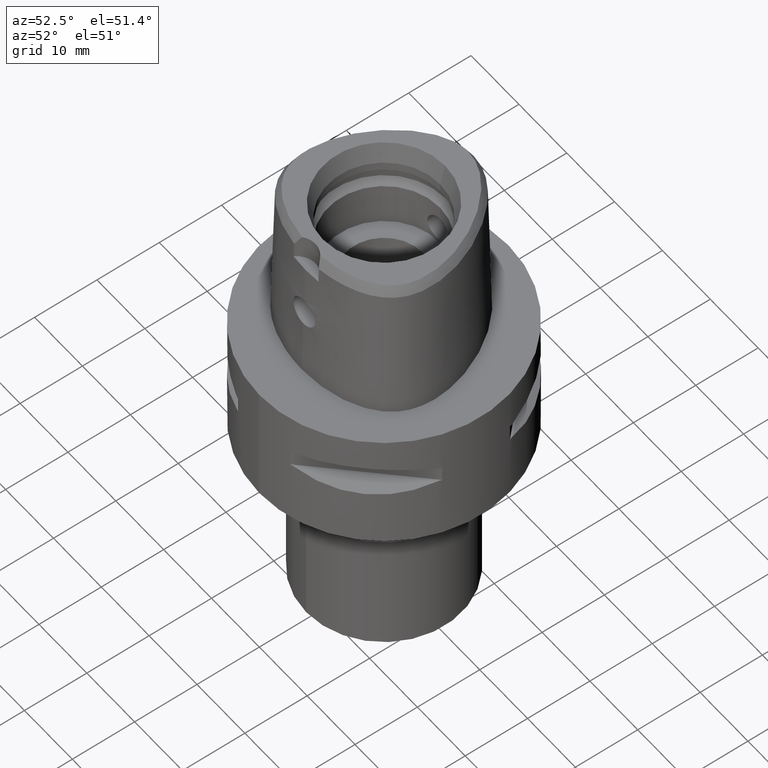
[diagram: clean part render]
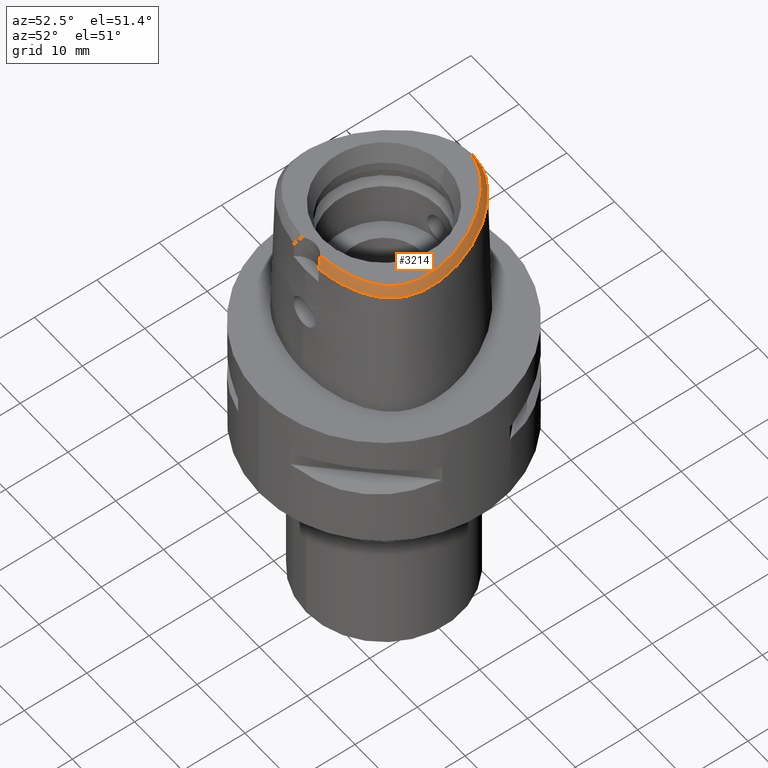
[diagram: same view with one face highlighted and labeled with its STEP entity id]
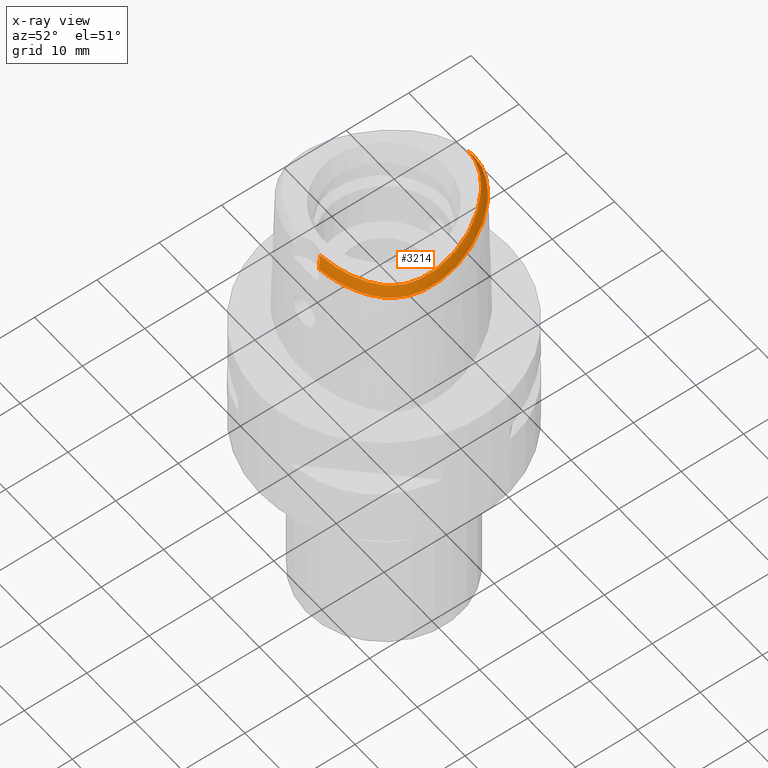
[diagram: x-ray of the same camera — body ghosted, the highlighted face saturated]
A machine part, auxiliary view. The second image highlights one B-rep face of the part: STEP entity #3214.
The next image is the same camera in x-ray: the body ghosted, the highlighted face saturated — about 0% of this face is hidden behind the body in this view.
In plain terms, the highlighted face is a freeform B-spline surface patch.
Its self-contained STEP definition (entity closure, byte-faithful):
#14 = CARTESIAN_POINT ( 'NONE',  ( 2.692731913842342006, 13.03725377846869904, 23.99999999999981526 ) ) ;
#17 = CARTESIAN_POINT ( 'NONE',  ( 3.015431326716000004, 13.85816439992000149, 22.42687534869999766 ) ) ;
#40 = CARTESIAN_POINT ( 'NONE',  ( 5.891480962838999247, 12.22124619392999989, 22.42687542307000115 ) ) ;
#59 = CARTESIAN_POINT ( 'NONE',  ( 2.673493704799999815, 12.98831396169000030, 24.09378418331000304 ) ) ;
#80 = CARTESIAN_POINT ( 'NONE',  ( 5.133540135919999692, 12.75294611568000036, 22.42688056499000027 ) ) ;
#104 = CARTESIAN_POINT ( 'NONE',  ( 1.670768320944000074, 13.95186216340000129, 22.98251232499999830 ) ) ;
#155 = CARTESIAN_POINT ( 'NONE',  ( 1.593696593278000062, -12.59540680304000126, 22.42687694749000116 ) ) ;
#167 = CARTESIAN_POINT ( 'NONE',  ( 1.515894610913332219, 14.29262276005880494, 22.52071729251869314 ) ) ;
#183 = CARTESIAN_POINT ( 'NONE',  ( 10.27622834778999916, -8.913357246251999655, 23.53814805225999507 ) ) ;
#190 = CARTESIAN_POINT ( 'NONE',  ( 10.46238780066888729, -9.543612998139410664, 22.52071729251869314 ) ) ;
#204 = CARTESIAN_POINT ( 'NONE',  ( 1.993786000716999851, -11.93952398566000106, 23.53814837208000199 ) ) ;
#216 = CARTESIAN_POINT ( 'NONE',  ( 6.021703607729323338, 12.22251596526479389, 22.52071729251869314 ) ) ;
#218 = DIRECTION ( 'NONE',  ( -4.178728135036778640E-11, -0.4887572544033736976, 0.8724198222576535766 ) ) ;
#229 = CARTESIAN_POINT ( 'NONE',  ( 11.14970917883999846, -8.067286454534000839, 23.53814814536999833 ) ) ;
#255 = CARTESIAN_POINT ( 'NONE',  ( 7.545665901495000050, -10.23272888488999932, 24.09378417050000465 ) ) ;
#279 = CARTESIAN_POINT ( 'NONE',  ( 13.00632124920000088, 0.2532658288736000518, 22.98251438409999992 ) ) ;
#299 = CARTESIAN_POINT ( 'NONE',  ( 2.377474434250266278, -12.13327925690595244, 23.12252361339864848 ) ) ;
#301 = CARTESIAN_POINT ( 'NONE',  ( 12.66713497291543256, -3.971396687642087642, 24.00000000000442313 ) ) ;
#303 = CARTESIAN_POINT ( 'NONE',  ( 12.97445618301000003, -5.335776195055999871, 22.98251202906000046 ) ) ;
#322 = CARTESIAN_POINT ( 'NONE',  ( 6.719766980793422384, -10.63148725728930444, 23.99999999999322498 ) ) ;
#325 = EDGE_CURVE ( 'NONE', #766, #797, #754, .T. ) ;
#326 = CARTESIAN_POINT ( 'NONE',  ( 12.65999260146000083, -1.707173089604000049, 24.09378415180000133 ) ) ;
#330 = B_SPLINE_SURFACE_WITH_KNOTS ( 'NONE', 3, 3, ( 
 ( #759, #2219, #3664, #155 ),
 ( #4514, #3762, #1229, #2367 ),
 ( #4584, #204, #1989, #1273 ),
 ( #2412, #1683, #2036, #3501 ),
 ( #2341, #2691, #1657, #4138 ),
 ( #4116, #2715, #1252, #3473 ),
 ( #3075, #4162, #3812, #943 ),
 ( #1329, #895, #3450, #4192 ),
 ( #255, #2320, #561, #919 ),
 ( #3857, #1611, #2766, #3429 ),
 ( #509, #1960, #4485, #2390 ),
 ( #609, #3784, #3401, #533 ),
 ( #3050, #183, #2013, #2063 ),
 ( #3023, #4218, #3096, #4557 ),
 ( #2667, #229, #872, #3124 ),
 ( #3835, #4536, #1299, #1635 ),
 ( #2739, #586, #965, #680 ),
 ( #3927, #2159, #1406, #3605 ),
 ( #4271, #3529, #3885, #4242 ),
 ( #4679, #2111, #2506, #1019 ),
 ( #2844, #2487, #303, #4295 ),
 ( #1427, #990, #3553, #2133 ),
 ( #705, #1758, #1058, #3579 ),
 ( #347, #3196, #4317, #4658 ),
 ( #1801, #1353, #3952, #1039 ),
 ( #326, #4607, #2864, #1710 ),
 ( #4699, #1782, #3240, #1448 ),
 ( #1379, #2888, #279, #661 ),
 ( #3218, #4340, #1084, #2531 ),
 ( #3974, #2786, #2438, #640 ),
 ( #725, #2183, #3147, #3625 ),
 ( #2470, #2094, #1735, #3170 ),
 ( #4631, #2818, #3909, #1562 ),
 ( #4039, #3674, #2227, #4438 ),
 ( #1821, #2978, #4014, #1128 ),
 ( #388, #1476, #4411, #3328 ),
 ( #2249, #453, #3355, #3691 ),
 ( #364, #2635, #4061, #1850 ),
 ( #2551, #744, #3259, #1107 ),
 ( #3993, #3286, #4083, #40 ),
 ( #2997, #1197, #3647, #80 ),
 ( #796, #410, #818, #1868 ),
 ( #2596, #1179, #3712, #3307 ),
 ( #59, #1515, #2272, #17 ),
 ( #2952, #2616, #1154, #2914 ),
 ( #4368, #1538, #104, #429 ),
 ( #1917, #2203, #1499, #4456 ),
 ( #771, #842, #2291, #2935 ),
 ( #4389, #2569, #1890, #2732 ),
 ( #3042, #1322, #866, #1268 ),
 ( #4478, #1936, #3067, #3423 ) ),
 .UNSPECIFIED., .F., .F., .F.,
 ( 4, 1, 1, 1, 1, 1, 1, 1, 1, 1, 1, 1, 1, 1, 1, 1, 1, 1, 1, 1, 1, 1, 1, 1, 1, 1, 1, 1, 1, 1, 1, 1, 1, 1, 1, 1, 1, 1, 1, 1, 1, 1, 1, 1, 1, 1, 1, 1, 4 ),
 ( 4, 4 ),
 ( -0.006801674744683999969, 0.0000000000000000000, 0.01005137981102000033, 0.03205023803730000509, 0.05404909626358000291, 0.07604795448985000872, 0.09804681271614999749, 0.1200456709425000018, 0.1420445291685999978, 0.1640433873949000143, 0.1860422456211999753, 0.2080411038474999919, 0.2300399620737999806, 0.2520388203000999972, 0.2740376785263000103, 0.2960365367525999991, 0.3180353949789000434, 0.3400342532052000322, 0.3620331114315000209, 0.3840319696576999786, 0.4060308278839999674, 0.4280296861103000117, 0.4500285443366000004, 0.4720274025628999892, 0.4940262607891000024, 0.5160251190154000467, 0.5380239772417000355, 0.5600228354680000242, 0.5820216936942999020, 0.6040205519204999707, 0.6260194101468000705, 0.6480182683730999482, 0.6700171265993999370, 0.6920159848256999258, 0.7140148430518999945, 0.7360137012781999832, 0.7580125595044999720, 0.7800114177307999608, 0.8020102759570999496, 0.8240091341833999383, 0.8460079924094999759, 0.8680068506357999647, 0.8900057088620999535, 0.9120045670883999422, 0.9340034253147000420, 0.9560022835408999997, 0.9780011417671999885, 1.000000000000000000, 1.016043917558999921 ),
 ( -0.04172918853439999687, 1.041765795049000021 ),
 .UNSPECIFIED. ) ;
#345 = CARTESIAN_POINT ( 'NONE',  ( 12.73107502714990602, -3.278999632795111641, 24.00000000000074962 ) ) ;
#347 = CARTESIAN_POINT ( 'NONE',  ( 12.67857478894000067, -3.276060612469999800, 24.09378408281000006 ) ) ;
#362 = CARTESIAN_POINT ( 'NONE',  ( -1.335434154347000060E-10, 13.57127880780999796, 24.00000000000000000 ) ) ;
#364 = CARTESIAN_POINT ( 'NONE',  ( 6.810831761742000445, 10.20462363893999935, 24.09378397353000167 ) ) ;
#373 = B_SPLINE_CURVE_WITH_KNOTS ( 'NONE', 3,
 ( #362, #723, #1375, #678, #701, #4293, #14, #2528, #4337, #1081, #1799, #741, #2181, #2549, #1819, #2466, #2201, #2109, #1446, #3991, #1473, #4696, #1780, #3602, #3257, #2911, #345, #301, #1732, #3645, #3623, #3550, #2813, #3167, #3971, #1755, #3192, #2485, #4629, #4654, #4267, #2504, #322, #1425, #4365, #2862, #3949, #3925, #2130 ),
 .UNSPECIFIED., .F., .F.,
 ( 4, 1, 1, 1, 1, 1, 1, 1, 1, 1, 1, 1, 1, 1, 1, 1, 1, 1, 1, 1, 1, 1, 1, 1, 1, 1, 1, 1, 1, 1, 1, 1, 1, 1, 1, 1, 1, 1, 1, 1, 1, 1, 1, 1, 1, 1, 4 ),
 ( 0.0000000000000000000, 0.02199885823280001151, 0.04399771645910000029, 0.06599657468529995796, 0.08799543291160005776, 0.1099942911379000465, 0.1319931493642000353, 0.1539920075905000241, 0.1759908658166000617, 0.1979897240429000504, 0.2199885822692000392, 0.2419874404955000280, 0.2639862987218000168, 0.2859851569481000055, 0.3079840151743000742, 0.3299828734006000630, 0.3519817316269000518, 0.3739805898531999295, 0.3959794480795000293, 0.4179783063057000980, 0.4399771645319999758, 0.4619760227582999645, 0.4839748809845999533, 0.5059737392109000531, 0.5279725974371000108, 0.5499714556633999996, 0.5719703138896999883, 0.5939691721160000881, 0.6159680303423000769, 0.6379668885684999236, 0.6599657467947999123, 0.6819646050210999011, 0.7039634632474000009, 0.7259623214736999897, 0.7479611796998999473, 0.7699600379262000471, 0.7919588961525000359, 0.8139577543788000247, 0.8359566126051000134, 0.8579554708314000022, 0.8799543290575000398, 0.9019531872838499886, 0.9239520455101499774, 0.9459509037364199902, 0.9679497619626999949, 0.9899486201889799997, 1.000000000000000000 ),
 .UNSPECIFIED. ) ;
#388 = CARTESIAN_POINT ( 'NONE',  ( 8.315912922282999276, 8.554042726408001229, 24.09378416230000042 ) ) ;
#410 = CARTESIAN_POINT ( 'NONE',  ( 4.093073040445999844, 12.65624132652000000, 23.53815001354000103 ) ) ;
#427 = CARTESIAN_POINT ( 'NONE',  ( -1.335434154347000060E-10, 13.57127880780999796, 24.00000000000000000 ) ) ;
#429 = CARTESIAN_POINT ( 'NONE',  ( 1.741461794077000080, 14.25530811013000054, 22.42687642801999814 ) ) ;
#453 = CARTESIAN_POINT ( 'NONE',  ( 7.797406022552999971, 9.634947789349000757, 23.53814840316999835 ) ) ;
#509 = CARTESIAN_POINT ( 'NONE',  ( 8.970091892352000329, -9.474162163879000786, 24.09378410517999924 ) ) ;
#533 = CARTESIAN_POINT ( 'NONE',  ( 10.10737644355000064, -9.834682788219000216, 22.42687685230999861 ) ) ;
#547 = CARTESIAN_POINT ( 'NONE',  ( 13.44334616192656107, -0.2854647381888676949, 22.52071729251869314 ) ) ;
#561 = CARTESIAN_POINT ( 'NONE',  ( 7.801623565488999823, -10.80072787787000088, 22.98251176591000089 ) ) ;
#570 = CARTESIAN_POINT ( 'NONE',  ( 12.06912915025817234, -7.841969071234928812, 22.52071729251869314 ) ) ;
#572 = LINE ( 'NONE', #3462, #1216 ) ;
#586 = CARTESIAN_POINT ( 'NONE',  ( 11.80602548611999936, -7.207168021027999139, 23.53814800486999914 ) ) ;
#609 = CARTESIAN_POINT ( 'NONE',  ( 9.560019243229000097, -9.077113215084999354, 24.09378409366999918 ) ) ;
#624 = CARTESIAN_POINT ( 'NONE',  ( 3.014424016408232099, -12.39773933397601091, 22.52071729251869314 ) ) ;
#640 = CARTESIAN_POINT ( 'NONE',  ( 12.71420453772000059, 2.496736137432999936, 22.42687605944999873 ) ) ;
#661 = CARTESIAN_POINT ( 'NONE',  ( 13.31122007378999861, 0.3169841313462999910, 22.42687961156000043 ) ) ;
#673 = CARTESIAN_POINT ( 'NONE',  ( 2.568703243657000090, -12.45023755174000080, 22.52071758139999957 ) ) ;
#678 = CARTESIAN_POINT ( 'NONE',  ( 1.005831379202609233, 13.49945263942994167, 23.99999999999650058 ) ) ;
#680 = CARTESIAN_POINT ( 'NONE',  ( 12.32882146587999905, -7.546361330260000777, 22.42687568849000002 ) ) ;
#701 = CARTESIAN_POINT ( 'NONE',  ( 1.541313514288517039, 13.39618800248322650, 23.99999999999488765 ) ) ;
#705 = CARTESIAN_POINT ( 'NONE',  ( 12.61496515693000120, -3.964805325242000134, 24.09378411981000312 ) ) ;
#723 = CARTESIAN_POINT ( 'NONE',  ( 0.1653041921268378622, 13.57127880781013474, 23.99999999999640821 ) ) ;
#725 = CARTESIAN_POINT ( 'NONE',  ( 11.42188503670000088, 3.289019883982000181, 24.09378414604000440 ) ) ;
#741 = CARTESIAN_POINT ( 'NONE',  ( 6.095079845025243692, 10.92785127077387664, 23.99999999999945999 ) ) ;
#744 = CARTESIAN_POINT ( 'NONE',  ( 6.263647496609999088, 11.12437452857000153, 23.53814830217999798 ) ) ;
#754 = B_SPLINE_CURVE_WITH_KNOTS ( 'NONE', 3,
 ( #1149, #2591, #167, #3438, #216, #2399, #4545, #1698, #547, #2377, #3460, #1284, #3823, #3485, #570, #1668, #190, #1643, #4618, #975, #624, #3844 ),
 .UNSPECIFIED., .F., .F.,
 ( 4, 1, 1, 1, 1, 1, 1, 1, 1, 1, 1, 1, 1, 1, 1, 1, 1, 1, 1, 4 ),
 ( 0.0000000000000000000, 0.04407253041122746740, 0.08814506081991639597, 0.1762901216375058477, 0.2644351824549895369, 0.3525802432724731705, 0.4407253040900626084, 0.5288703649075462421, 0.5729428953163409055, 0.6170154257250298757, 0.6610879561338246502, 0.6831242213382220374, 0.7051604865426193136, 0.7271967517470168119, 0.7492330169513081728, 0.7933055473601030583, 0.8373780777688977217, 0.8814506081775865809, 0.9695956689951972240, 1.000000000000000000 ),
 .UNSPECIFIED. ) ;
#759 = CARTESIAN_POINT ( 'NONE',  ( 1.526633041036000060, -11.66396334100999965, 24.09378408799999960 ) ) ;
#766 = VERTEX_POINT ( 'NONE', #1010 ) ;
#771 = CARTESIAN_POINT ( 'NONE',  ( 0.4871848319485999612, 13.50621688615999894, 24.09378415691000086 ) ) ;
#796 = CARTESIAN_POINT ( 'NONE',  ( 3.940056468462000083, 12.38488886232000041, 24.09378375517000137 ) ) ;
#797 = VERTEX_POINT ( 'NONE', #673 ) ;
#818 = CARTESIAN_POINT ( 'NONE',  ( 4.246089612430999694, 12.92759379072000137, 22.98251627189999979 ) ) ;
#842 = CARTESIAN_POINT ( 'NONE',  ( 0.5113539377535000208, 13.81687186785999977, 23.53814803506999809 ) ) ;
#866 = CARTESIAN_POINT ( 'NONE',  ( -0.2637504521366000332, 14.13764275734000009, 22.98251211461000310 ) ) ;
#872 = CARTESIAN_POINT ( 'NONE',  ( 11.38240858859999882, -8.274483114430999819, 22.98251215622000387 ) ) ;
#895 = CARTESIAN_POINT ( 'NONE',  ( 6.810793415823000352, -10.87387559445999941, 23.53814842191000167 ) ) ;
#919 = CARTESIAN_POINT ( 'NONE',  ( 7.929602397485999710, -11.08472737435999989, 22.42687556360999679 ) ) ;
#943 = CARTESIAN_POINT ( 'NONE',  ( 6.038112284671999674, -11.79567283266999844, 22.42688015526000100 ) ) ;
#965 = CARTESIAN_POINT ( 'NONE',  ( 12.06742347600000009, -7.376764675643999958, 22.98251184668000136 ) ) ;
#975 = CARTESIAN_POINT ( 'NONE',  ( 4.736458210706008032, -12.13940339171074356, 22.52071729251869314 ) ) ;
#990 = CARTESIAN_POINT ( 'NONE',  ( 12.81720722110999944, -4.654970701573001080, 23.53814805301999868 ) ) ;
#1010 = CARTESIAN_POINT ( 'NONE',  ( -6.268853442822000267E-11, 14.40001989798000182, 22.52071729252999788 ) ) ;
#1019 = CARTESIAN_POINT ( 'NONE',  ( 13.08576871268000197, -6.011938183908999811, 22.42687646910999888 ) ) ;
#1039 = CARTESIAN_POINT ( 'NONE',  ( 13.63049495509000053, -2.513200052280999852, 22.42687600645999879 ) ) ;
#1058 = CARTESIAN_POINT ( 'NONE',  ( 13.23313852829000048, -4.042908048815000654, 22.98251231589999932 ) ) ;
#1081 = CARTESIAN_POINT ( 'NONE',  ( 4.650015056714264183, 12.01535282295090745, 24.00000000000486011 ) ) ;
#1084 = CARTESIAN_POINT ( 'NONE',  ( 12.75443442390000115, 1.301317253536000029, 22.98251458160999761 ) ) ;
#1107 = CARTESIAN_POINT ( 'NONE',  ( 6.669241857177000909, 11.59723349251000002, 22.42687670118000298 ) ) ;
#1128 = CARTESIAN_POINT ( 'NONE',  ( 9.802832139749000362, 8.142426288442001336, 22.42687742514000249 ) ) ;
#1149 = CARTESIAN_POINT ( 'NONE',  ( -6.268853442822000267E-11, 14.40001989798000182, 22.52071729252999788 ) ) ;
#1154 = CARTESIAN_POINT ( 'NONE',  ( 2.273321029850999597, 13.78858171663999777, 22.98251170829000145 ) ) ;
#1179 = CARTESIAN_POINT ( 'NONE',  ( 3.424270910889999797, 13.00264072743999932, 23.53814921869999921 ) ) ;
#1197 = CARTESIAN_POINT ( 'NONE',  ( 4.791972701698000492, 12.23190210094000108, 23.53814943655000036 ) ) ;
#1216 = VECTOR ( 'NONE', #218, 1000.000000000000114 ) ;
#1229 = CARTESIAN_POINT ( 'NONE',  ( 1.701451368649999907, -12.27555487106999976, 22.98251267130000031 ) ) ;
#1252 = CARTESIAN_POINT ( 'NONE',  ( 4.884507877504999485, -11.78855247755999969, 22.98251383975999929 ) ) ;
#1268 = CARTESIAN_POINT ( 'NONE',  ( -0.2754363166865999579, 14.44876010666999910, 22.42687610272999876 ) ) ;
#1273 = CARTESIAN_POINT ( 'NONE',  ( 2.051492050450999916, -12.55946662463999886, 22.42687693925000048 ) ) ;
#1284 = CARTESIAN_POINT ( 'NONE',  ( 13.19588016803238872, -5.576003003767366906, 22.52071729251869314 ) ) ;
#1299 = CARTESIAN_POINT ( 'NONE',  ( 11.75001745258000163, -7.828095200955998756, 22.98251243752999784 ) ) ;
#1322 = CARTESIAN_POINT ( 'NONE',  ( -0.2520645875865999974, 13.82652540800999930, 23.53814812647999943 ) ) ;
#1329 = CARTESIAN_POINT ( 'NONE',  ( 6.701283054958000918, -10.58226762075000060, 24.09378407835999880 ) ) ;
#1353 = CARTESIAN_POINT ( 'NONE',  ( 13.00750309364000046, -2.520764839829000348, 23.53814809821999887 ) ) ;
#1375 = CARTESIAN_POINT ( 'NONE',  ( 0.4912642629215966394, 13.55865141013510744, 23.99999999999134914 ) ) ;
#1379 = CARTESIAN_POINT ( 'NONE',  ( 12.39652360003000098, 0.1258292239282000069, 24.09378392917999889 ) ) ;
#1406 = CARTESIAN_POINT ( 'NONE',  ( 12.33857356989000031, -6.920795659054999938, 22.98251214571000034 ) ) ;
#1425 = CARTESIAN_POINT ( 'NONE',  ( 5.780202704591065554, -10.95235643153747596, 23.99999999999960565 ) ) ;
#1427 = CARTESIAN_POINT ( 'NONE',  ( 12.51168919626999987, -4.593928447404000082, 24.09378415327000056 ) ) ;
#1446 = CARTESIAN_POINT ( 'NONE',  ( 10.97862720533614933, 4.421873472736585597, 23.99999999999845457 ) ) ;
#1448 = CARTESIAN_POINT ( 'NONE',  ( 13.48776312179999870, -0.6902156660390000864, 22.42687594871000201 ) ) ;
#1473 = CARTESIAN_POINT ( 'NONE',  ( 11.87933568351953006, 2.212772766010604908, 24.00000000000060041 ) ) ;
#1476 = CARTESIAN_POINT ( 'NONE',  ( 8.558208384520000322, 8.749758346628999206, 23.53814800855999678 ) ) ;
#1499 = CARTESIAN_POINT ( 'NONE',  ( 1.093276988006999906, 14.06328334337999841, 22.98251199964999714 ) ) ;
#1511 = EDGE_LOOP ( 'NONE', ( #4001, #1585, #4408, #1810 ) ) ;
#1515 = CARTESIAN_POINT ( 'NONE',  ( 2.787472912105999789, 13.27826410776999921, 23.53814790510999799 ) ) ;
#1538 = CARTESIAN_POINT ( 'NONE',  ( 1.600074847811999934, 13.64841621667000027, 23.53814822198000201 ) ) ;
#1548 = EDGE_CURVE ( 'NONE', #2945, #3132, #373, .T. ) ;
#1562 = CARTESIAN_POINT ( 'NONE',  ( 11.18249811319000031, 5.953280957637999471, 22.42687600236999756 ) ) ;
#1585 = ORIENTED_EDGE ( 'NONE', *, *, #1832, .T. ) ;
#1611 = CARTESIAN_POINT ( 'NONE',  ( 8.446934837638000459, -10.13610419804999907, 23.53814810879999797 ) ) ;
#1635 = CARTESIAN_POINT ( 'NONE',  ( 11.99768301812999916, -8.017162017181000522, 22.42687660200000010 ) ) ;
#1643 = CARTESIAN_POINT ( 'NONE',  ( 9.075996545096728596, -10.47368666716278263, 22.52071729251869314 ) ) ;
#1657 = CARTESIAN_POINT ( 'NONE',  ( 3.743545769682000035, -12.02745773972000087, 22.98251157848999782 ) ) ;
#1668 = CARTESIAN_POINT ( 'NONE',  ( 11.42690036410719046, -8.639965949823052327, 22.52071729251869314 ) ) ;
#1683 = CARTESIAN_POINT ( 'NONE',  ( 2.715017554396000232, -11.86470260839000090, 23.53814825879000239 ) ) ;
#1698 = CARTESIAN_POINT ( 'NONE',  ( 12.68166859856818185, 2.767886240359058281, 22.52071729251869314 ) ) ;
#1710 = CARTESIAN_POINT ( 'NONE',  ( 13.59164325047000155, -1.633981155408000152, 22.42687587733999877 ) ) ;
#1732 = CARTESIAN_POINT ( 'NONE',  ( 12.56325666868020008, -4.604231586668391607, 23.99999999999554845 ) ) ;
#1735 = CARTESIAN_POINT ( 'NONE',  ( 11.49321727082000066, 4.667837948559999894, 22.98251282474999968 ) ) ;
#1755 = CARTESIAN_POINT ( 'NONE',  ( 10.95628640552842015, -7.895061898324033045, 23.99999999999779021 ) ) ;
#1758 = CARTESIAN_POINT ( 'NONE',  ( 12.92405184261000173, -4.003856687027999683, 23.53814821785000078 ) ) ;
#1778 = CARTESIAN_POINT ( 'NONE',  ( 2.145199990327296913, -11.88057979214423909, 23.61561775293197840 ) ) ;
#1780 = CARTESIAN_POINT ( 'NONE',  ( 12.44798655948427601, 0.1365840453712249547, 24.00000000000574474 ) ) ;
#1782 = CARTESIAN_POINT ( 'NONE',  ( 12.87113396896999973, -0.7790287015631999212, 23.53814808126999836 ) ) ;
#1799 = CARTESIAN_POINT ( 'NONE',  ( 5.360995407852130690, 11.51670950506821889, 24.00000000000234479 ) ) ;
#1801 = CARTESIAN_POINT ( 'NONE',  ( 12.69600716290999998, -2.524547233603000151, 24.09378414410000246 ) ) ;
#1810 = ORIENTED_EDGE ( 'NONE', *, *, #4532, .F. ) ;
#1819 = CARTESIAN_POINT ( 'NONE',  ( 8.356809247697979615, 8.587076979792101383, 23.99999999999722888 ) ) ;
#1821 = CARTESIAN_POINT ( 'NONE',  ( 9.042700090394999890, 7.599031703516000213, 24.09378405952000080 ) ) ;
#1832 = EDGE_CURVE ( 'NONE', #766, #2945, #572, .T. ) ;
#1850 = CARTESIAN_POINT ( 'NONE',  ( 7.461966788256000349, 10.87484652724999989, 22.42687886739999925 ) ) ;
#1868 = CARTESIAN_POINT ( 'NONE',  ( 4.399106184414999454, 13.19894625493000007, 22.42688253026999590 ) ) ;
#1890 = CARTESIAN_POINT ( 'NONE',  ( 0.05036297626083000717, 14.14633292477999937, 22.98251228760999965 ) ) ;
#1917 = CARTESIAN_POINT ( 'NONE',  ( 0.9977713214932000252, 13.44748310003000036, 24.09378414895000020 ) ) ;
#1936 = CARTESIAN_POINT ( 'NONE',  ( -0.3824330111029000112, 13.81967986369999934, 23.53814802148999874 ) ) ;
#1960 = CARTESIAN_POINT ( 'NONE',  ( 9.134652579770001779, -9.738678659424000017, 23.53814828983000140 ) ) ;
#1989 = CARTESIAN_POINT ( 'NONE',  ( 2.022639025583999661, -12.24949530514999907, 22.98251265566999990 ) ) ;
#2013 = CARTESIAN_POINT ( 'NONE',  ( 10.47613109842000156, -9.152321239710000000, 22.98251195109999756 ) ) ;
#2036 = CARTESIAN_POINT ( 'NONE',  ( 2.754556310214999915, -12.17356617380000117, 22.98251240608999879 ) ) ;
#2063 = CARTESIAN_POINT ( 'NONE',  ( 10.67603384905000041, -9.391285233168998658, 22.42687584994000005 ) ) ;
#2094 = CARTESIAN_POINT ( 'NONE',  ( 11.21220677836999968, 4.533520162204000670, 23.53814844883000035 ) ) ;
#2109 = CARTESIAN_POINT ( 'NONE',  ( 10.41037096115088367, 5.527356888184570494, 23.99999999999944933 ) ) ;
#2111 = CARTESIAN_POINT ( 'NONE',  ( 12.49930846205000101, -5.801248746420999858, 23.53814823404999856 ) ) ;
#2130 = CARTESIAN_POINT ( 'NONE',  ( 1.908900751366000126, -11.68567549349000068, 24.00000000000000000 ) ) ;
#2133 = CARTESIAN_POINT ( 'NONE',  ( 13.42824327080999858, -4.777055209909999434, 22.42687585250999760 ) ) ;
#2159 = CARTESIAN_POINT ( 'NONE',  ( 12.06476757613999951, -6.772055436505999282, 23.53814814059999705 ) ) ;
#2181 = CARTESIAN_POINT ( 'NONE',  ( 6.847466138750907483, 10.24233194362317079, 23.99999999999336353 ) ) ;
#2183 = CARTESIAN_POINT ( 'NONE',  ( 11.71028425228000103, 3.406648900945000058, 23.53814808863999986 ) ) ;
#2201 = CARTESIAN_POINT ( 'NONE',  ( 9.775510958009071771, 6.602848413448474396, 24.00000000000125056 ) ) ;
#2203 = CARTESIAN_POINT ( 'NONE',  ( 1.045524154750000045, 13.75538322170000072, 23.53814807429999689 ) ) ;
#2219 = CARTESIAN_POINT ( 'NONE',  ( 1.548987558450000135, -11.97444449502000019, 23.53814837450000041 ) ) ;
#2227 = CARTESIAN_POINT ( 'NONE',  ( 10.25803313200000133, 6.906941963447000177, 22.98251247436999734 ) ) ;
#2249 = CARTESIAN_POINT ( 'NONE',  ( 7.567218942518000091, 9.425116508218000178, 24.09378408217000000 ) ) ;
#2272 = CARTESIAN_POINT ( 'NONE',  ( 2.901452119411000119, 13.56821425383999902, 22.98251162690000271 ) ) ;
#2291 = CARTESIAN_POINT ( 'NONE',  ( 0.5355230435584000803, 14.12752684956999971, 22.98251191322000153 ) ) ;
#2320 = CARTESIAN_POINT ( 'NONE',  ( 7.673644733491999936, -10.51672838138000010, 23.53814796820000055 ) ) ;
#2341 = CARTESIAN_POINT ( 'NONE',  ( 3.634657013416000115, -11.41411120457000017, 24.09378418777999897 ) ) ;
#2367 = CARTESIAN_POINT ( 'NONE',  ( 1.725674035281999918, -12.58590153276000123, 22.42687696341999981 ) ) ;
#2377 = CARTESIAN_POINT ( 'NONE',  ( 13.60847656765939107, -2.623199557614614541, 22.52071729251869314 ) ) ;
#2390 = CARTESIAN_POINT ( 'NONE',  ( 9.463773954605999350, -10.26771165050999990, 22.42687665912999861 ) ) ;
#2399 = CARTESIAN_POINT ( 'NONE',  ( 8.737913805847986382, 9.598635895951684205, 22.52071729251869314 ) ) ;
#2412 = CARTESIAN_POINT ( 'NONE',  ( 2.675478798576000461, -11.55583904298000064, 24.09378411149000243 ) ) ;
#2438 = CARTESIAN_POINT ( 'NONE',  ( 12.41932426707000126, 2.396438712996000309, 22.98251208661000078 ) ) ;
#2466 = CARTESIAN_POINT ( 'NONE',  ( 9.085466894419825579, 7.629604351704328380, 23.99999999999989342 ) ) ;
#2470 = CARTESIAN_POINT ( 'NONE',  ( 10.93119628592000048, 4.399202375848999758, 24.09378407290000013 ) ) ;
#2485 = CARTESIAN_POINT ( 'NONE',  ( 10.11006658375411149, -8.714727269571270085, 24.00000000000036238 ) ) ;
#2487 = CARTESIAN_POINT ( 'NONE',  ( 12.67420108780000021, -5.252580402252999825, 23.53814808764999711 ) ) ;
#2504 = CARTESIAN_POINT ( 'NONE',  ( 7.567267065261161108, -10.28066430934622488, 24.00000000000093081 ) ) ;
#2506 = CARTESIAN_POINT ( 'NONE',  ( 12.79253858737000016, -5.906593465164999834, 22.98251235158000227 ) ) ;
#2528 = CARTESIAN_POINT ( 'NONE',  ( 3.312825528086755789, 12.76889704495747679, 23.99999999999906919 ) ) ;
#2531 = CARTESIAN_POINT ( 'NONE',  ( 13.05482973001000069, 1.383661904488000083, 22.42687991692999816 ) ) ;
#2549 = CARTESIAN_POINT ( 'NONE',  ( 7.606071530364771682, 9.460533301731803846, 23.99999999999716849 ) ) ;
#2551 = CARTESIAN_POINT ( 'NONE',  ( 6.060850316326999554, 10.88794504659999873, 24.09378410268000081 ) ) ;
#2569 = CARTESIAN_POINT ( 'NONE',  ( 0.04822164311787999896, 13.83481837411000015, 23.53814820500999971 ) ) ;
#2591 = CARTESIAN_POINT ( 'NONE',  ( 0.5039711947966580841, 14.40001989753295852, 22.52071729251869314 ) ) ;
#2596 = CARTESIAN_POINT ( 'NONE',  ( 3.290195308747000169, 12.72143280130000065, 24.09378391656999696 ) ) ;
#2616 = CARTESIAN_POINT ( 'NONE',  ( 2.180511934989000089, 13.49116575141000141, 23.53814794204999927 ) ) ;
#2635 = CARTESIAN_POINT ( 'NONE',  ( 7.027876770579999821, 10.42803126836999894, 23.53814893815999909 ) ) ;
#2667 = CARTESIAN_POINT ( 'NONE',  ( 10.91700976907000076, -7.860089794638000171, 24.09378413452000345 ) ) ;
#2691 = CARTESIAN_POINT ( 'NONE',  ( 3.689101391548999853, -11.72078447214000008, 23.53814788312999795 ) ) ;
#2715 = CARTESIAN_POINT ( 'NONE',  ( 4.811769336672999664, -11.48568992796000110, 23.53814890956000028 ) ) ;
#2732 = CARTESIAN_POINT ( 'NONE',  ( 0.05250430940378000844, 14.45784747543999949, 22.42687637019999869 ) ) ;
#2739 = CARTESIAN_POINT ( 'NONE',  ( 11.54462749625000129, -7.037571366413000185, 24.09378416304999959 ) ) ;
#2766 = CARTESIAN_POINT ( 'NONE',  ( 8.593275019052001085, -10.41110600082999937, 22.98251207564999987 ) ) ;
#2786 = CARTESIAN_POINT ( 'NONE',  ( 12.12444399643000104, 2.296141288558999793, 23.53814811376999927 ) ) ;
#2813 = CARTESIAN_POINT ( 'NONE',  ( 11.83717647605589107, -6.648420630655690111, 23.99999999999895195 ) ) ;
#2818 = CARTESIAN_POINT ( 'NONE',  ( 10.63705900040000074, 5.652403510255999741, 23.53814809701999877 ) ) ;
#2844 = CARTESIAN_POINT ( 'NONE',  ( 12.37394599258999861, -5.169384609449999779, 24.09378414625000175 ) ) ;
#2862 = CARTESIAN_POINT ( 'NONE',  ( 3.643846516944406755, -11.46587366694073751, 24.00000000000558131 ) ) ;
#2864 = CARTESIAN_POINT ( 'NONE',  ( 13.28109303413000042, -1.658378466805999985, 22.98251196881999547 ) ) ;
#2888 = CARTESIAN_POINT ( 'NONE',  ( 12.70142242462000048, 0.1895475264009000016, 23.53814915663999940 ) ) ;
#2911 = CARTESIAN_POINT ( 'NONE',  ( 12.74858362815182922, -2.523908814685861035, 24.00000000000250466 ) ) ;
#2914 = CARTESIAN_POINT ( 'NONE',  ( 2.366130124711999905, 14.08599768186000034, 22.42687547453000008 ) ) ;
#2926 = FACE_OUTER_BOUND ( 'NONE', #1511, .T. ) ;
#2935 = CARTESIAN_POINT ( 'NONE',  ( 0.5596921493633000289, 14.43818183127000054, 22.42687579138000231 ) ) ;
#2945 = VERTEX_POINT ( 'NONE', #427 ) ;
#2952 = CARTESIAN_POINT ( 'NONE',  ( 2.087702840128000226, 13.19374978618999883, 24.09378417581000065 ) ) ;
#2978 = CARTESIAN_POINT ( 'NONE',  ( 9.296077440179999485, 7.780163231823999936, 23.53814851473000047 ) ) ;
#2997 = CARTESIAN_POINT ( 'NONE',  ( 4.621188984586999560, 11.97138009357000143, 24.09378387233999774 ) ) ;
#3023 = CARTESIAN_POINT ( 'NONE',  ( 10.52639857890000030, -8.268252600066999136, 24.09378414631000354 ) ) ;
#3042 = CARTESIAN_POINT ( 'NONE',  ( -0.2403787230366000172, 13.51540805868000028, 24.09378413836000021 ) ) ;
#3050 = CARTESIAN_POINT ( 'NONE',  ( 10.07632559717000120, -8.674393252793999309, 24.09378415343000057 ) ) ;
#3067 = CARTESIAN_POINT ( 'NONE',  ( -0.3998697132335999882, 14.13045704021999960, 22.98251188329000172 ) ) ;
#3075 = CARTESIAN_POINT ( 'NONE',  ( 5.764827038514000357, -10.90208086062999904, 24.09378389676000154 ) ) ;
#3096 = CARTESIAN_POINT ( 'NONE',  ( 10.95982480154000172, -8.715947074644999404, 22.98251202830000040 ) ) ;
#3124 = CARTESIAN_POINT ( 'NONE',  ( 11.61510799836999830, -8.481679774328000576, 22.42687616706999876 ) ) ;
#3132 = VERTEX_POINT ( 'NONE', #4672 ) ;
#3147 = CARTESIAN_POINT ( 'NONE',  ( 11.99868346786000117, 3.524277917908000379, 22.98251203123999886 ) ) ;
#3167 = CARTESIAN_POINT ( 'NONE',  ( 11.58874808009367996, -7.066197077816735117, 23.99999999999763034 ) ) ;
#3170 = CARTESIAN_POINT ( 'NONE',  ( 11.77422776328000076, 4.802155734914999918, 22.42687720068000345 ) ) ;
#3192 = CARTESIAN_POINT ( 'NONE',  ( 10.56297693592085274, -8.306035104844008643, 23.99999999999792522 ) ) ;
#3196 = CARTESIAN_POINT ( 'NONE',  ( 12.98961910296000077, -3.293473210813999685, 23.53814840004000075 ) ) ;
#3214 = ADVANCED_FACE ( 'NONE', ( #2926 ), #330, .F. ) ;
#3218 = CARTESIAN_POINT ( 'NONE',  ( 12.15364381168000030, 1.136627951632000144, 24.09378391096999650 ) ) ;
#3240 = CARTESIAN_POINT ( 'NONE',  ( 13.17944854538999877, -0.7346221838011000038, 22.98251201499000018 ) ) ;
#3257 = CARTESIAN_POINT ( 'NONE',  ( 12.71240944240228288, -1.703055140481006369, 24.00000000000412470 ) ) ;
#3259 = CARTESIAN_POINT ( 'NONE',  ( 6.466444676893000398, 11.36080401053999900, 22.98251250167999871 ) ) ;
#3286 = CARTESIAN_POINT ( 'NONE',  ( 5.516740132008999709, 11.72355372774999971, 23.53814792693999891 ) ) ;
#3307 = CARTESIAN_POINT ( 'NONE',  ( 3.692422115175999497, 13.56505657974000023, 22.42687982297000104 ) ) ;
#3328 = CARTESIAN_POINT ( 'NONE',  ( 9.042799308991998686, 9.141189587071998801, 22.42687570109000106 ) ) ;
#3355 = CARTESIAN_POINT ( 'NONE',  ( 8.027593102587998075, 9.844779070481001426, 22.98251272417999758 ) ) ;
#3401 = CARTESIAN_POINT ( 'NONE',  ( 9.924924043445999544, -9.582159597173999899, 22.98251259942999880 ) ) ;
#3423 = CARTESIAN_POINT ( 'NONE',  ( -0.4173064153643000207, 14.44123421675000074, 22.42687574509000115 ) ) ;
#3429 = CARTESIAN_POINT ( 'NONE',  ( 8.739615200467000022, -10.68610780362000057, 22.42687604249999822 ) ) ;
#3438 = CARTESIAN_POINT ( 'NONE',  ( 3.539803247036101386, 13.67924950644984428, 22.52071729251869314 ) ) ;
#3450 = CARTESIAN_POINT ( 'NONE',  ( 6.920303776687999786, -11.16548356816000087, 22.98251276545999744 ) ) ;
#3460 = CARTESIAN_POINT ( 'NONE',  ( 13.49620531829855707, -4.288887307216343814, 22.52071729251869314 ) ) ;
#3462 = CARTESIAN_POINT ( 'NONE',  ( -6.268853442822000267E-11, 14.40001989798000182, 22.52071729252999788 ) ) ;
#3473 = CARTESIAN_POINT ( 'NONE',  ( 4.957246418336000993, -12.09141502716000005, 22.42687876996999918 ) ) ;
#3485 = CARTESIAN_POINT ( 'NONE',  ( 12.48241502960077653, -7.206725676734023978, 22.52071729251869314 ) ) ;
#3501 = CARTESIAN_POINT ( 'NONE',  ( 2.794095066034000041, -12.48242973921999877, 22.42687655339000230 ) ) ;
#3529 = CARTESIAN_POINT ( 'NONE',  ( 12.29507478630999984, -6.307093648112999773, 23.53814814048000059 ) ) ;
#3550 = CARTESIAN_POINT ( 'NONE',  ( 12.05866527356799978, -6.201315129638921064, 23.99999999999522871 ) ) ;
#3553 = CARTESIAN_POINT ( 'NONE',  ( 13.12272524595999990, -4.716012955740999324, 22.98251195277000036 ) ) ;
#3579 = CARTESIAN_POINT ( 'NONE',  ( 13.54222521396999923, -4.081959410601999849, 22.42687641395000142 ) ) ;
#3602 = CARTESIAN_POINT ( 'NONE',  ( 12.61485888653424858, -0.8159399761862055067, 24.00000000000083844 ) ) ;
#3605 = CARTESIAN_POINT ( 'NONE',  ( 12.61237956363000023, -7.069535881604999794, 22.42687615082000008 ) ) ;
#3623 = CARTESIAN_POINT ( 'NONE',  ( 12.25557177138983000, -5.713684847254590693, 24.00000000000398614 ) ) ;
#3625 = CARTESIAN_POINT ( 'NONE',  ( 12.28708268343999954, 3.641906934870999812, 22.42687597384000142 ) ) ;
#3645 = CARTESIAN_POINT ( 'NONE',  ( 12.42462515086991992, -5.183426978152312792, 24.00000000000562395 ) ) ;
#3647 = CARTESIAN_POINT ( 'NONE',  ( 4.962756418809000536, 12.49242410831000072, 22.98251500076999676 ) ) ;
#3664 = CARTESIAN_POINT ( 'NONE',  ( 1.571342075863999987, -12.28492564903000073, 22.98251266099000389 ) ) ;
#3674 = CARTESIAN_POINT ( 'NONE',  ( 9.994534470002999882, 6.740880696492999924, 23.53814828978000051 ) ) ;
#3691 = CARTESIAN_POINT ( 'NONE',  ( 8.257780182623001508, 10.05461035161000005, 22.42687704519000391 ) ) ;
#3712 = CARTESIAN_POINT ( 'NONE',  ( 3.558346513033000313, 13.28384865358999889, 22.98251452083000146 ) ) ;
#3762 = CARTESIAN_POINT ( 'NONE',  ( 1.677228702017000028, -11.96520820938000007, 23.53814837916999991 ) ) ;
#3784 = CARTESIAN_POINT ( 'NONE',  ( 9.742471643337001552, -9.329636406129999671, 23.53814834654999899 ) ) ;
#3812 = CARTESIAN_POINT ( 'NONE',  ( 5.947017202619999665, -11.49780884199000042, 22.98251473575999881 ) ) ;
#3823 = CARTESIAN_POINT ( 'NONE',  ( 12.82590900890492946, -6.531187914406431538, 22.52071729251869314 ) ) ;
#3835 = CARTESIAN_POINT ( 'NONE',  ( 11.25468632148000125, -7.449961568506999754, 24.09378410859000041 ) ) ;
#3844 = CARTESIAN_POINT ( 'NONE',  ( 2.568703243657000090, -12.45023755174000080, 22.52071758139999957 ) ) ;
#3857 = CARTESIAN_POINT ( 'NONE',  ( 8.300594656223999834, -9.861102395258999564, 24.09378414194999962 ) ) ;
#3885 = CARTESIAN_POINT ( 'NONE',  ( 12.57948986905999789, -6.434351666359999555, 22.98251214544000121 ) ) ;
#3909 = CARTESIAN_POINT ( 'NONE',  ( 10.90977855679000186, 5.802842233946999606, 22.98251204970000217 ) ) ;
#3925 = CARTESIAN_POINT ( 'NONE',  ( 2.094511630441635575, -11.66893426578018911, 24.00000000000206057 ) ) ;
#3927 = CARTESIAN_POINT ( 'NONE',  ( 11.79096158240000136, -6.623315213957000402, 24.09378413549000086 ) ) ;
#3939 = B_SPLINE_CURVE_WITH_KNOTS ( 'NONE', 3,
 ( #3946, #299, #1778, #4602 ),
 .UNSPECIFIED., .F., .F.,
 ( 4, 4 ),
 ( 0.0000000000000000000, 1.000000000000000000 ),
 .UNSPECIFIED. ) ;
#3946 = CARTESIAN_POINT ( 'NONE',  ( 2.568703243657000090, -12.45023755174000080, 22.52071758139999957 ) ) ;
#3949 = CARTESIAN_POINT ( 'NONE',  ( 2.682152426755722630, -11.60797119916323439, 23.99999999999877787 ) ) ;
#3952 = CARTESIAN_POINT ( 'NONE',  ( 13.31899902436000005, -2.516982446054999656, 22.98251205233999883 ) ) ;
#3971 = CARTESIAN_POINT ( 'NONE',  ( 11.29648905055014829, -7.481873590177103850, 23.99999999999684874 ) ) ;
#3974 = CARTESIAN_POINT ( 'NONE',  ( 11.82956372577999993, 2.195843864122999811, 24.09378414094000220 ) ) ;
#3991 = CARTESIAN_POINT ( 'NONE',  ( 11.47056307656461271, 3.308874133465462108, 23.99999999999808153 ) ) ;
#3993 = CARTESIAN_POINT ( 'NONE',  ( 5.329369716593999939, 11.47470749465999873, 24.09378417888000001 ) ) ;
#4001 = ORIENTED_EDGE ( 'NONE', *, *, #325, .F. ) ;
#4014 = CARTESIAN_POINT ( 'NONE',  ( 9.549454789964999080, 7.961294760132998860, 22.98251296992999926 ) ) ;
#4039 = CARTESIAN_POINT ( 'NONE',  ( 9.731035808008998700, 6.574819429539999760, 24.09378410520000102 ) ) ;
#4061 = CARTESIAN_POINT ( 'NONE',  ( 7.244921779418000085, 10.65143889780999942, 22.98251390277999917 ) ) ;
#4083 = CARTESIAN_POINT ( 'NONE',  ( 5.704110547423999478, 11.97239996083999891, 22.98251167501000225 ) ) ;
#4116 = CARTESIAN_POINT ( 'NONE',  ( 4.739030795841999932, -11.18282737836000074, 24.09378397934999683 ) ) ;
#4138 = CARTESIAN_POINT ( 'NONE',  ( 3.797990147816000306, -12.33413100729000078, 22.42687527385000124 ) ) ;
#4162 = CARTESIAN_POINT ( 'NONE',  ( 5.855922120566999567, -11.19994485131000239, 23.53814931626000018 ) ) ;
#4192 = CARTESIAN_POINT ( 'NONE',  ( 7.029814137554000197, -11.45709154187000145, 22.42687710901000031 ) ) ;
#4218 = CARTESIAN_POINT ( 'NONE',  ( 10.74311169021999923, -8.492099837355999270, 23.53814808730999886 ) ) ;
#4242 = CARTESIAN_POINT ( 'NONE',  ( 12.86390495182000038, -6.561609684606000137, 22.42687615039999827 ) ) ;
#4267 = CARTESIAN_POINT ( 'NONE',  ( 8.325294977167454036, -9.907519125943057503, 24.00000000000115818 ) ) ;
#4271 = CARTESIAN_POINT ( 'NONE',  ( 12.01065970355000090, -6.179835629866999192, 24.09378413551000264 ) ) ;
#4293 = CARTESIAN_POINT ( 'NONE',  ( 2.103367809293602786, 13.24394973622197824, 24.00000000000080291 ) ) ;
#4295 = CARTESIAN_POINT ( 'NONE',  ( 13.27471127821999808, -5.418971987860000006, 22.42687597045999937 ) ) ;
#4317 = CARTESIAN_POINT ( 'NONE',  ( 13.30066341696999999, -3.310885809157999571, 22.98251271727000145 ) ) ;
#4337 = CARTESIAN_POINT ( 'NONE',  ( 3.965883677374500316, 12.43068963207287325, 23.99999999999986500 ) ) ;
#4340 = CARTESIAN_POINT ( 'NONE',  ( 12.45403911778999984, 1.218972602583999976, 23.53814924629000060 ) ) ;
#4365 = CARTESIAN_POINT ( 'NONE',  ( 4.751308116302622508, -11.23394664105729035, 24.00000000000371614 ) ) ;
#4368 = CARTESIAN_POINT ( 'NONE',  ( 1.529381374680000016, 13.34497026993000013, 24.09378411896000216 ) ) ;
#4389 = CARTESIAN_POINT ( 'NONE',  ( 0.04608030997492999770, 13.52330382345000181, 24.09378412241000333 ) ) ;
#4408 = ORIENTED_EDGE ( 'NONE', *, *, #1548, .T. ) ;
#4411 = CARTESIAN_POINT ( 'NONE',  ( 8.800503846755999504, 8.945473966850000735, 22.98251185483000114 ) ) ;
#4438 = CARTESIAN_POINT ( 'NONE',  ( 10.52153179398999860, 7.073003230401000430, 22.42687665895000038 ) ) ;
#4456 = CARTESIAN_POINT ( 'NONE',  ( 1.141029821263999988, 14.37118346505000055, 22.42687592499999738 ) ) ;
#4478 = CARTESIAN_POINT ( 'NONE',  ( -0.3649963089721000031, 13.50890268718000087, 24.09378415968000198 ) ) ;
#4485 = CARTESIAN_POINT ( 'NONE',  ( 9.299213267187999676, -10.00319515496999934, 22.98251247447999646 ) ) ;
#4514 = CARTESIAN_POINT ( 'NONE',  ( 1.653006035383999706, -11.65486154769000038, 24.09378408705000041 ) ) ;
#4532 = EDGE_CURVE ( 'NONE', #797, #3132, #3939, .T. ) ;
#4536 = CARTESIAN_POINT ( 'NONE',  ( 11.50235188702999878, -7.639028384731000543, 23.53814827305999913 ) ) ;
#4545 = CARTESIAN_POINT ( 'NONE',  ( 11.01301037807005123, 6.358384389066635833, 22.52071729251869314 ) ) ;
#4557 = CARTESIAN_POINT ( 'NONE',  ( 11.17653791285999887, -8.939794311933001225, 22.42687596929000193 ) ) ;
#4584 = CARTESIAN_POINT ( 'NONE',  ( 1.964932975849000174, -11.62955266618000039, 24.09378408849000053 ) ) ;
#4602 = CARTESIAN_POINT ( 'NONE',  ( 1.908900751366000126, -11.68567549349000068, 24.00000000000000000 ) ) ;
#4607 = CARTESIAN_POINT ( 'NONE',  ( 12.97054281780000018, -1.682775778205000128, 23.53814806030999662 ) ) ;
#4618 = CARTESIAN_POINT ( 'NONE',  ( 6.968888527419287549, -11.49954675151795591, 22.52071729251869314 ) ) ;
#4629 = CARTESIAN_POINT ( 'NONE',  ( 9.590814837412542815, -9.119735848214231666, 23.99999999999930722 ) ) ;
#4631 = CARTESIAN_POINT ( 'NONE',  ( 10.36433944400000051, 5.501964786565000765, 24.09378414434000248 ) ) ;
#4654 = CARTESIAN_POINT ( 'NONE',  ( 8.997867597934872563, -9.518809110955796626, 23.99999999999297273 ) ) ;
#4658 = CARTESIAN_POINT ( 'NONE',  ( 13.61170773099000009, -3.328298407502999989, 22.42687703449000125 ) ) ;
#4672 = CARTESIAN_POINT ( 'NONE',  ( 1.908900751366000126, -11.68567549349000068, 24.00000000000000000 ) ) ;
#4679 = CARTESIAN_POINT ( 'NONE',  ( 12.20607833673999920, -5.695904027676999881, 24.09378411652000196 ) ) ;
#4696 = CARTESIAN_POINT ( 'NONE',  ( 12.20434663573781187, 1.150526658650386391, 24.00000000000111555 ) ) ;
#4699 = CARTESIAN_POINT ( 'NONE',  ( 12.56281939256000157, -0.8234352193252000296, 24.09378414754000275 ) ) ;